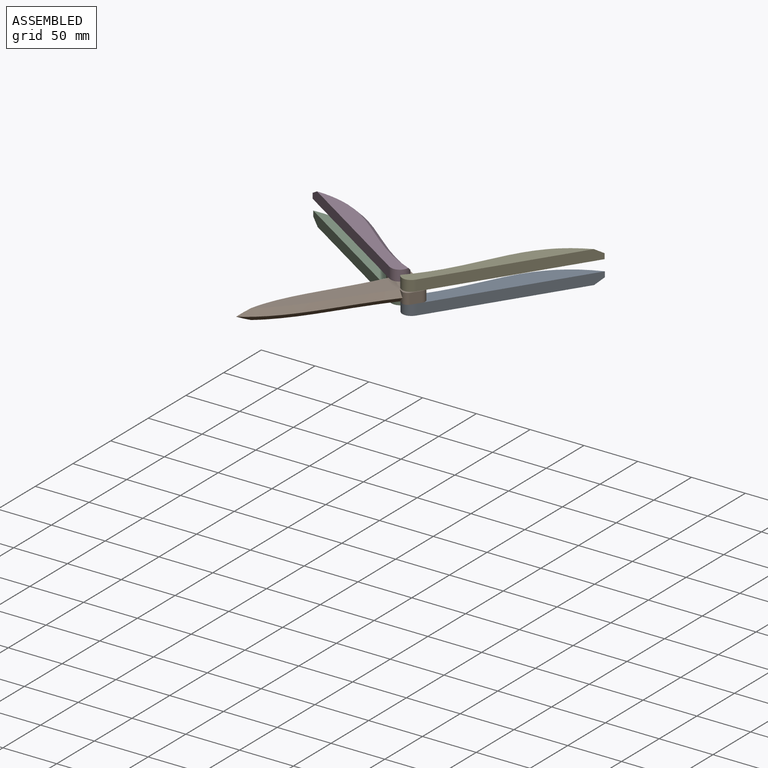
[diagram: assembled view]
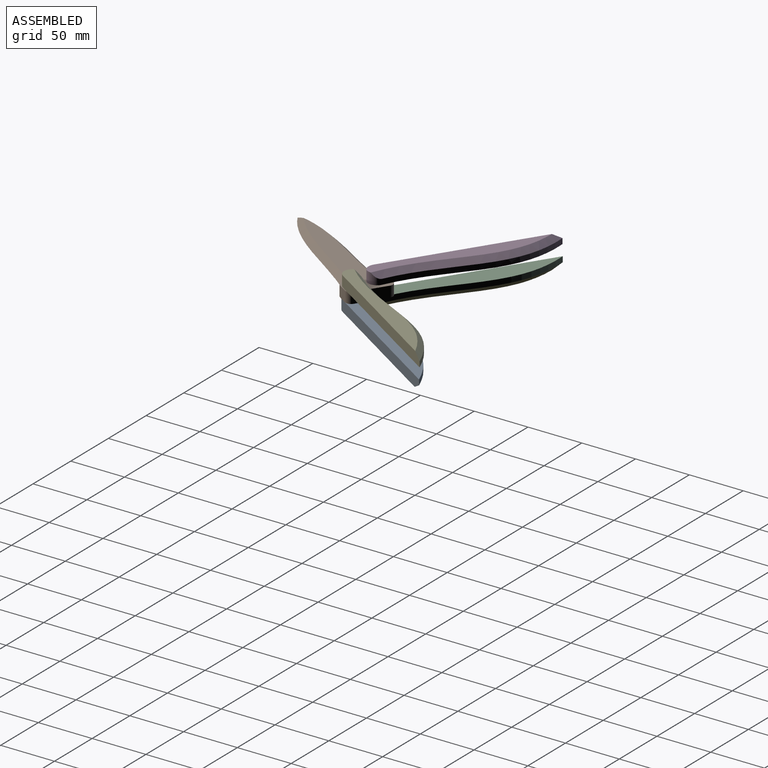
[diagram: assembled view, second angle]
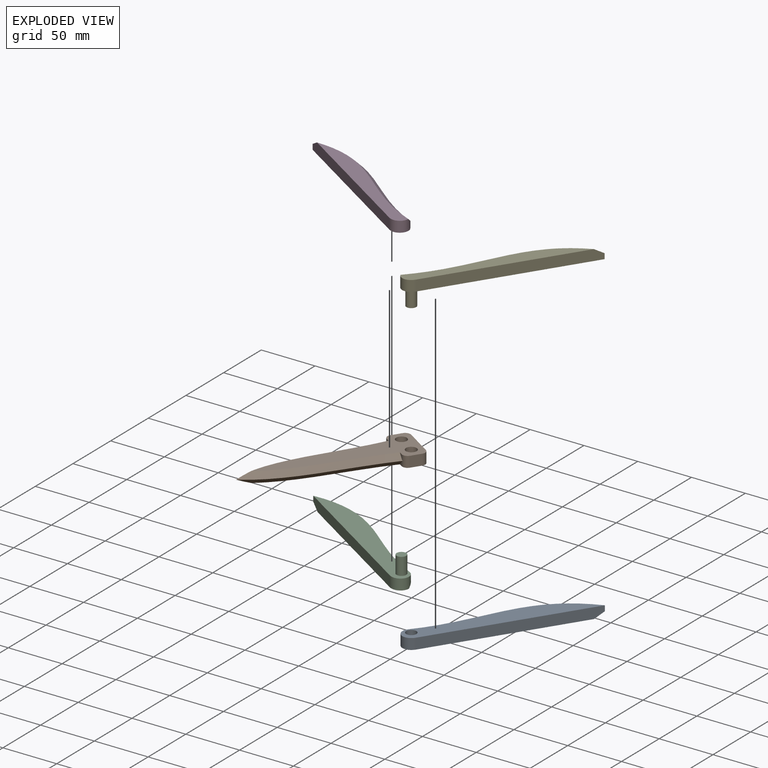
[diagram: exploded view]
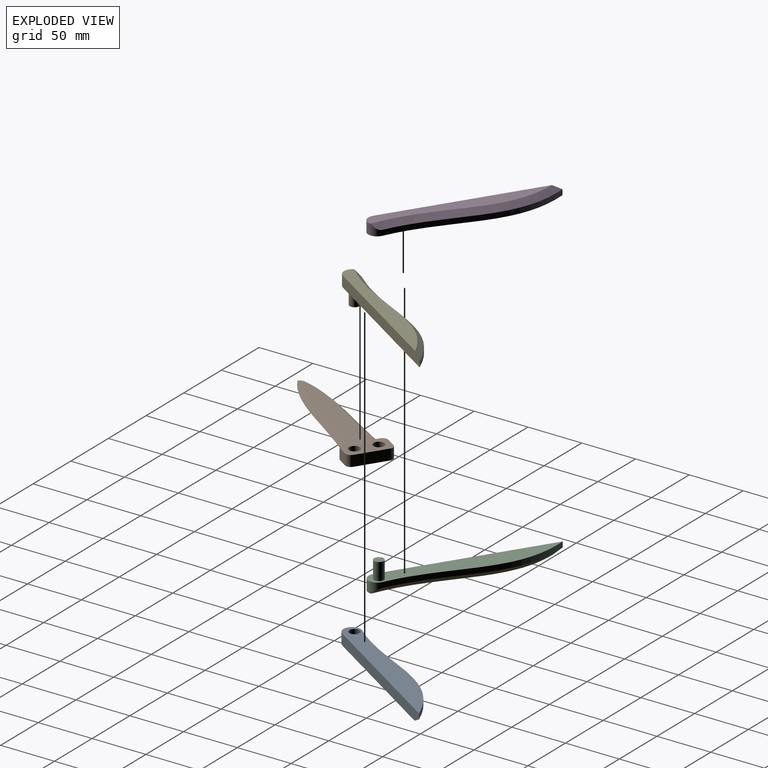
[diagram: exploded view, second angle]
ASSEMBLY  parts=5 mates=4
PART A: 9 faces, bbox 32.5x166.5x12.6 mm
  f0: plane 155.34x10.34mm, normal (-1,0,0), area 1528.3mm2, adj f1,f2,f3,f6,f7
  f1: extruded ~154.8x19.93mm, area 797.3mm2, adj f0,f3,f7,f8
  f2: plane 157.71x17.78mm, normal (0,0,1), area 1724.4mm2, adj f0,f6,f7,f8
  f3: plane 163.95x25.85mm, normal (0,0,-1), area 2460.6mm2, adj f0,f1,f4,f6,f8
  f4: cylinder r=4.75mm len=9.5mm, axis (0,0,-1), area 179.1mm2, adj f3,f5
  f5: plane 9.5x9.5mm, normal (0,0,-1), area 70.9mm2, adj f4
  f6: cylinder r=10mm len=10mm, axis (0,0,-1), area 47.7mm2, adj f0,f2,f3,f8
  f7: bspline ~162.76x23.96mm, area 1119.1mm2, adj f0,f1,f2,f8
  f8: cylinder r=8.05mm len=15.2mm, axis (0,0,-1), area 202.2mm2, adj f1,f2,f3,f6,f7
PART B: 19 faces, bbox 40x153.1x10 mm
  f0: plane 3.57x3.55mm, normal (0,1,0), area 6.3mm2, adj f8,f12,f17
  f1: plane 3.63x3.6mm, normal (0,1,0), area 6.5mm2, adj f7,f9,f16
  f2: plane 3.63x3.6mm, normal (0,1,0), area 6.5mm2, adj f8,f10,f16
  f3: plane 3.57x3.55mm, normal (0,1,0), area 6.3mm2, adj f7,f11,f17
  f4: plane 10x10mm, normal (-1,0,0), area 100mm2, adj f7,f8,f17,f18
  f5: plane 30x10mm, normal (0,-1,0), area 300mm2, adj f7,f8,f15,f18
  f6: plane 10x10mm, normal (1,0,0), area 100mm2, adj f7,f8,f15,f16
  f7: plane 137.65x40mm, normal (0,0,1), area 2435.7mm2, adj f1,f3,f4,f5,f6,f9,f11,f13
  f8: plane 137.65x40mm, normal (0,0,-1), area 2435.7mm2, adj f0,f2,f4,f5,f6,f10,f12,f13
  f9: bspline ~140.16x23.35mm, area 888.6mm2, adj f1,f7,f10,f11,f16
  f10: bspline ~140.16x23.35mm, area 888.6mm2, adj f2,f8,f9,f12,f16
  f11: bspline ~130.85x20.94mm, area 888.1mm2, adj f3,f7,f9,f12,f17
  f12: bspline ~130.85x20.94mm, area 888mm2, adj f0,f8,f10,f11,f17
  f13: cylinder r=5mm len=10mm, axis (0,0,-1), area 314.2mm2, adj f7,f8
  f14: cylinder r=5mm len=10mm, axis (0,0,-1), area 314.2mm2, adj f7,f8
  f15: cylinder r=5mm len=10mm, axis (0,0,-1), area 78.5mm2, adj f5,f6,f7,f8
  f16: cylinder r=5mm len=10mm, axis (0,0,1), area 76.5mm2, adj f1,f2,f6,f7,f8,f9,f10
  f17: cylinder r=5mm len=10mm, axis (0,0,-1), area 76.3mm2, adj f0,f3,f4,f7,f8,f11,f12
  f18: cylinder r=5mm len=10mm, axis (0,0,1), area 78.5mm2, adj f4,f5,f7,f8
PART C: 9 faces, bbox 32.5x166.5x28.6 mm
  f0: extruded ~154.8x19.93mm, area 797.3mm2, adj f1,f3,f7,f8
  f1: plane 155.34x10.34mm, normal (1,0,0), area 1528.3mm2, adj f0,f2,f3,f6,f7
  f2: plane 157.71x17.78mm, normal (0,0,1), area 1731.8mm2, adj f1,f6,f7,f8
  f3: plane 163.95x25.85mm, normal (0,0,-1), area 2467.9mm2, adj f0,f1,f4,f6,f8
  f4: cylinder r=4.5mm len=16mm, axis (0,0,1), area 452.4mm2, adj f3,f5
  f5: plane 9x9mm, normal (0,0,-1), area 63.6mm2, adj f4
  f6: cylinder r=10mm len=10mm, axis (0,0,1), area 47.7mm2, adj f1,f2,f3,f8
  f7: bspline ~162.76x23.96mm, area 1119.1mm2, adj f0,f1,f2,f8
  f8: cylinder r=8.05mm len=15.2mm, axis (0,0,-1), area 202.2mm2, adj f0,f2,f3,f6,f7
PART D: same geometry as A
PART E: same geometry as C
PLACE A rot(axis=(-0.28,-0.96,0),180deg) t=(-56.43,101.63,-75.32)mm
PLACE B rot(axis=(0,0,1),147.1deg) t=(-234.63,41.96,-75.32)mm
PLACE C rot(axis=(0.48,-0.88,0),180deg) t=(-255.9,73.69,-75.32)mm
PLACE D rot(axis=(0,0,1),57.1deg) t=(-256.17,73.27,-75.32)mm
PLACE E rot(axis=(0,0,-1),32.9deg) t=(-56.85,101.9,-75.32)mm
MATE fastened B.f13 <-> A.f4  axis (0,0,-1) through (-145.74,71.93,-80.32)mm
MATE fastened D.f4 <-> C.f4  axis (0,0,-1) through (-162.53,82.79,-64.32)mm
MATE fastened A.f4 <-> E.f4  axis (0,0,1) through (-145.74,71.93,-86.32)mm
MATE fastened C.f4 <-> B.f14  axis (0,0,1) through (-162.53,82.79,-80.32)mm
